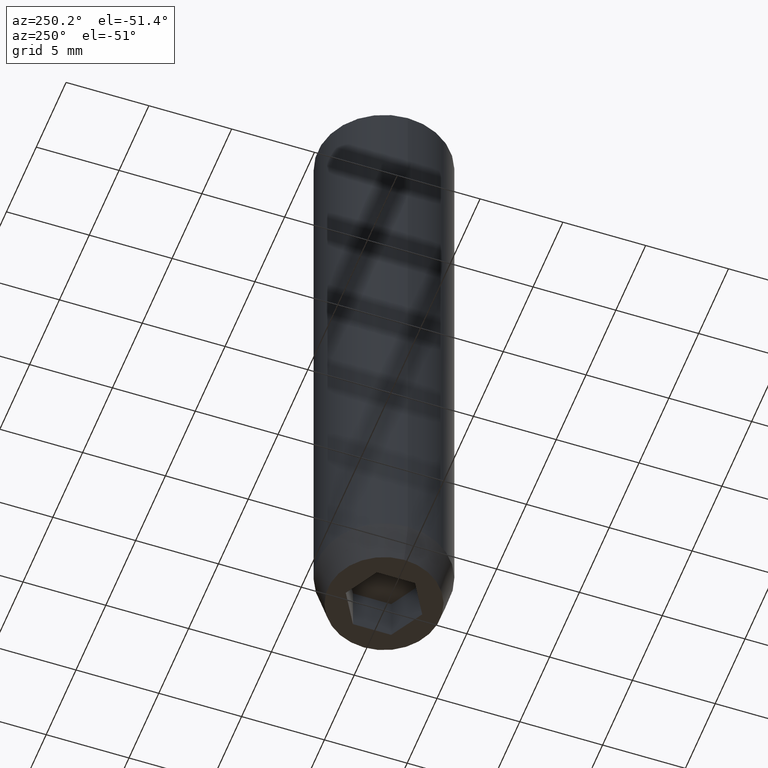
[diagram: clean part render]
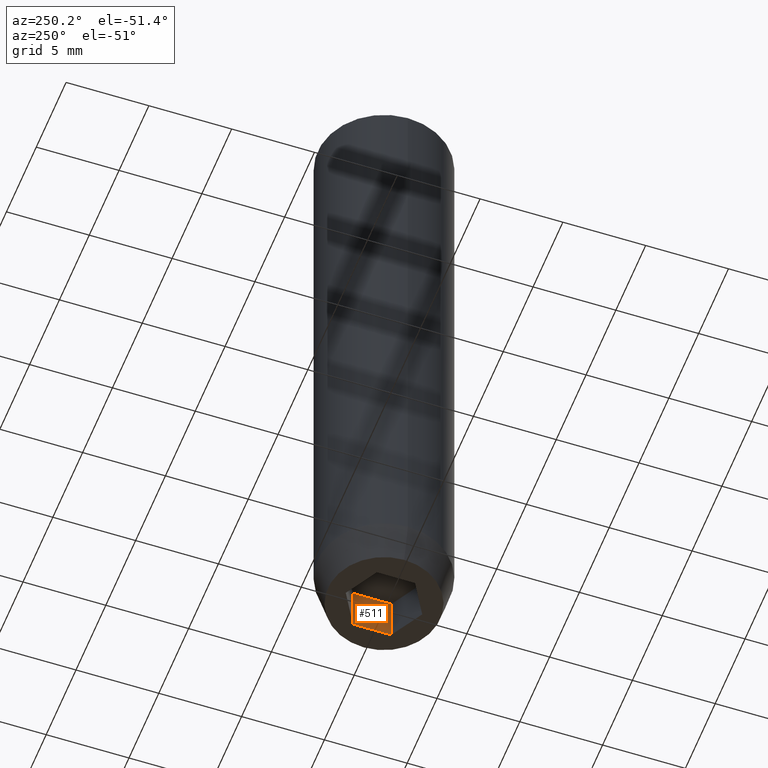
[diagram: same view with one face highlighted and labeled with its STEP entity id]
A machine part, auxiliary view. The second image highlights one B-rep face of the part: STEP entity #511.
In plain terms, the highlighted planar face has unit normal (1, 0, -0).
Its self-contained STEP definition (entity closure, byte-faithful):
#4 = EDGE_CURVE ( 'NONE', #275, #267, #427, .T. ) ;
#24 = CARTESIAN_POINT ( 'NONE',  ( 2.000000000000000888, -1.154700538379252572, -37.20000000000000284 ) ) ;
#34 = CARTESIAN_POINT ( 'NONE',  ( 2.000000000000000888, 0.000000000000000000, -37.20000000000000284 ) ) ;
#66 = LINE ( 'NONE', #248, #510 ) ;
#92 = ORIENTED_EDGE ( 'NONE', *, *, #100, .F. ) ;
#96 = DIRECTION ( 'NONE',  ( 0.000000000000000000, -1.000000000000000000, 0.000000000000000000 ) ) ;
#100 = EDGE_CURVE ( 'NONE', #504, #224, #66, .T. ) ;
#107 = AXIS2_PLACEMENT_3D ( 'NONE', #34, #432, #309 ) ;
#129 = PLANE ( 'NONE',  #107 ) ;
#132 = VECTOR ( 'NONE', #96, 1000.000000000000000 ) ;
#155 = DIRECTION ( 'NONE',  ( -0.000000000000000000, -0.000000000000000000, -1.000000000000000000 ) ) ;
#224 = VERTEX_POINT ( 'NONE', #489 ) ;
#232 = CARTESIAN_POINT ( 'NONE',  ( 2.000000000000000888, 1.154700538379251462, -40.00000000000000000 ) ) ;
#248 = CARTESIAN_POINT ( 'NONE',  ( 2.000000000000000888, -1.154700538379252572, -37.20000000000000284 ) ) ;
#251 = EDGE_CURVE ( 'NONE', #267, #224, #328, .T. ) ;
#267 = VERTEX_POINT ( 'NONE', #232 ) ;
#275 = VERTEX_POINT ( 'NONE', #359 ) ;
#281 = CARTESIAN_POINT ( 'NONE',  ( 2.000000000000000888, 0.000000000000000000, -40.00000000000000000 ) ) ;
#297 = CARTESIAN_POINT ( 'NONE',  ( 2.000000000000000888, 0.000000000000000000, -37.20000000000000284 ) ) ;
#309 = DIRECTION ( 'NONE',  ( -0.000000000000000000, 0.000000000000000000, -1.000000000000000000 ) ) ;
#326 = VECTOR ( 'NONE', #155, 1000.000000000000000 ) ;
#328 = LINE ( 'NONE', #281, #132 ) ;
#346 = DIRECTION ( 'NONE',  ( 0.000000000000000000, -1.000000000000000000, 0.000000000000000000 ) ) ;
#356 = LINE ( 'NONE', #297, #363 ) ;
#359 = CARTESIAN_POINT ( 'NONE',  ( 2.000000000000000888, 1.154700538379251462, -37.20000000000000284 ) ) ;
#363 = VECTOR ( 'NONE', #346, 1000.000000000000000 ) ;
#386 = CARTESIAN_POINT ( 'NONE',  ( 2.000000000000000888, 1.154700538379251462, -37.20000000000000284 ) ) ;
#403 = FACE_OUTER_BOUND ( 'NONE', #536, .T. ) ;
#425 = DIRECTION ( 'NONE',  ( -0.000000000000000000, -0.000000000000000000, -1.000000000000000000 ) ) ;
#427 = LINE ( 'NONE', #386, #326 ) ;
#432 = DIRECTION ( 'NONE',  ( 1.000000000000000000, 0.000000000000000000, -0.000000000000000000 ) ) ;
#444 = ORIENTED_EDGE ( 'NONE', *, *, #251, .T. ) ;
#489 = CARTESIAN_POINT ( 'NONE',  ( 2.000000000000000888, -1.154700538379252572, -40.00000000000000000 ) ) ;
#504 = VERTEX_POINT ( 'NONE', #24 ) ;
#510 = VECTOR ( 'NONE', #425, 1000.000000000000000 ) ;
#511 = ADVANCED_FACE ( 'NONE', ( #403 ), #129, .F. ) ;
#536 = EDGE_LOOP ( 'NONE', ( #444, #92, #562, #543 ) ) ;
#543 = ORIENTED_EDGE ( 'NONE', *, *, #4, .T. ) ;
#553 = EDGE_CURVE ( 'NONE', #275, #504, #356, .T. ) ;
#562 = ORIENTED_EDGE ( 'NONE', *, *, #553, .F. ) ;